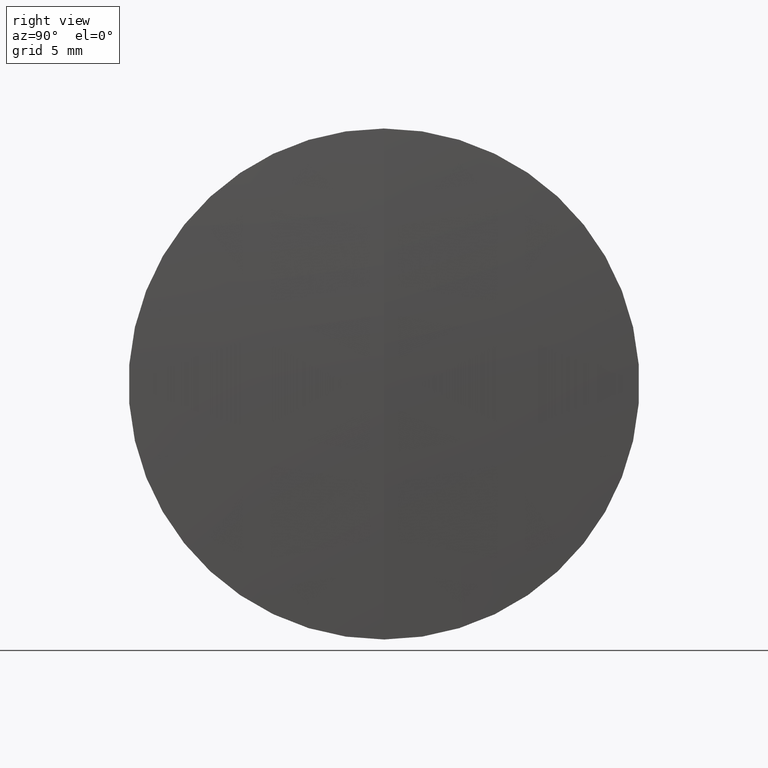
[diagram: clean part render]
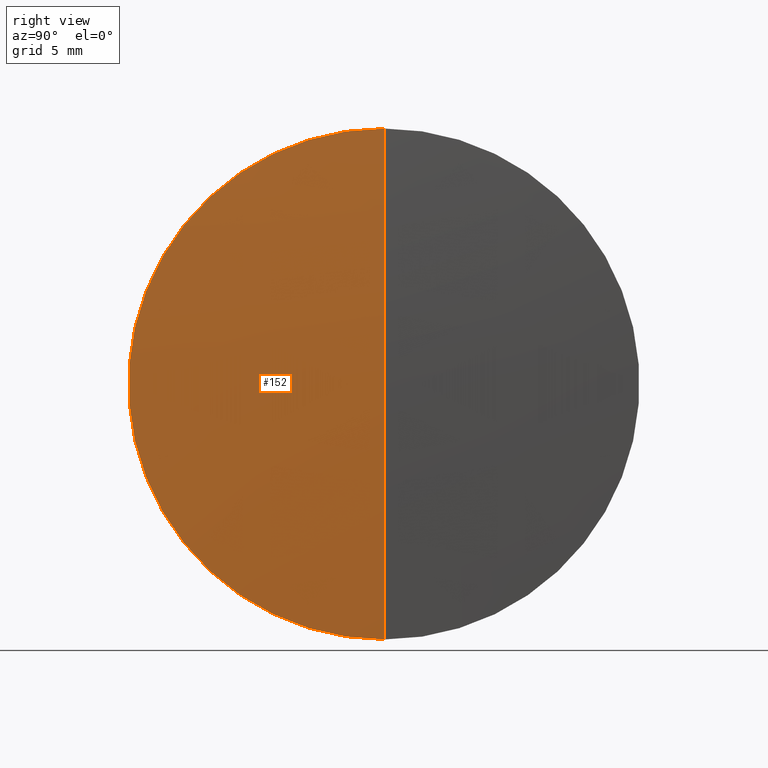
[diagram: same view with one face highlighted and labeled with its STEP entity id]
A machine part, right view. The second image highlights one B-rep face of the part: STEP entity #152.
In plain terms, the highlighted spherical surface has radius 284.4 mm.
Its self-contained STEP definition (entity closure, byte-faithful):
#7 = AXIS2_PLACEMENT_3D ( 'NONE', #138, #292, #113 ) ;
#15 = DIRECTION ( 'NONE',  ( 0.0000000000000000000, -1.224646799147353200E-016, 1.000000000000000000 ) ) ;
#38 = CARTESIAN_POINT ( 'NONE',  ( -44.49949926124752200, 0.0000000000000000000, 0.0000000000000000000 ) ) ;
#41 = DIRECTION ( 'NONE',  ( -0.0000000000000000000, 1.000000000000000000, 1.224646799147353200E-016 ) ) ;
#44 = CARTESIAN_POINT ( 'NONE',  ( 239.5046556379369900, 1.836970198721015000E-015, -14.99999999999987400 ) ) ;
#49 = CARTESIAN_POINT ( 'NONE',  ( 239.5046556379369900, 0.0000000000000000000, 14.99999999999987400 ) ) ;
#53 = AXIS2_PLACEMENT_3D ( 'NONE', #192, #330, #85 ) ;
#63 = EDGE_CURVE ( 'NONE', #156, #339, #102, .T. ) ;
#70 = AXIS2_PLACEMENT_3D ( 'NONE', #225, #41, #15 ) ;
#85 = DIRECTION ( 'NONE',  ( 0.0000000000000000000, 0.0000000000000000000, 1.000000000000000000 ) ) ;
#87 = ORIENTED_EDGE ( 'NONE', *, *, #63, .F. ) ;
#99 = AXIS2_PLACEMENT_3D ( 'NONE', #38, #259, #238 ) ;
#102 = CIRCLE ( 'NONE', #70, 284.3999999999999800 ) ;
#111 = EDGE_CURVE ( 'NONE', #156, #285, #232, .T. ) ;
#113 = DIRECTION ( 'NONE',  ( 0.0000000000000000000, 0.0000000000000000000, 1.000000000000000000 ) ) ;
#137 = ORIENTED_EDGE ( 'NONE', *, *, #150, .F. ) ;
#138 = CARTESIAN_POINT ( 'NONE',  ( 239.5046556379369900, 0.0000000000000000000, 0.0000000000000000000 ) ) ;
#145 = FACE_OUTER_BOUND ( 'NONE', #179, .T. ) ;
#150 = EDGE_CURVE ( 'NONE', #339, #285, #315, .T. ) ;
#152 = ADVANCED_FACE ( 'NONE', ( #145 ), #329, .T. ) ;
#156 = VERTEX_POINT ( 'NONE', #216 ) ;
#179 = EDGE_LOOP ( 'NONE', ( #87, #190, #137 ) ) ;
#190 = ORIENTED_EDGE ( 'NONE', *, *, #111, .T. ) ;
#192 = CARTESIAN_POINT ( 'NONE',  ( -44.49949926124752200, 0.0000000000000000000, 0.0000000000000000000 ) ) ;
#216 = CARTESIAN_POINT ( 'NONE',  ( 239.9005007387524700, 0.0000000000000000000, 1.741447748387536100E-014 ) ) ;
#225 = CARTESIAN_POINT ( 'NONE',  ( -44.49949926124752200, 0.0000000000000000000, 0.0000000000000000000 ) ) ;
#232 = CIRCLE ( 'NONE', #99, 284.3999999999999800 ) ;
#238 = DIRECTION ( 'NONE',  ( 0.0000000000000000000, 0.0000000000000000000, -1.000000000000000000 ) ) ;
#259 = DIRECTION ( 'NONE',  ( 0.0000000000000000000, -1.000000000000000000, 0.0000000000000000000 ) ) ;
#285 = VERTEX_POINT ( 'NONE', #49 ) ;
#292 = DIRECTION ( 'NONE',  ( -1.000000000000000000, -0.0000000000000000000, -0.0000000000000000000 ) ) ;
#315 = CIRCLE ( 'NONE', #7, 14.99999999999987400 ) ;
#329 = SPHERICAL_SURFACE ( 'NONE', #53, 284.3999999999999800 ) ;
#330 = DIRECTION ( 'NONE',  ( 0.0000000000000000000, 1.000000000000000000, 0.0000000000000000000 ) ) ;
#339 = VERTEX_POINT ( 'NONE', #44 ) ;